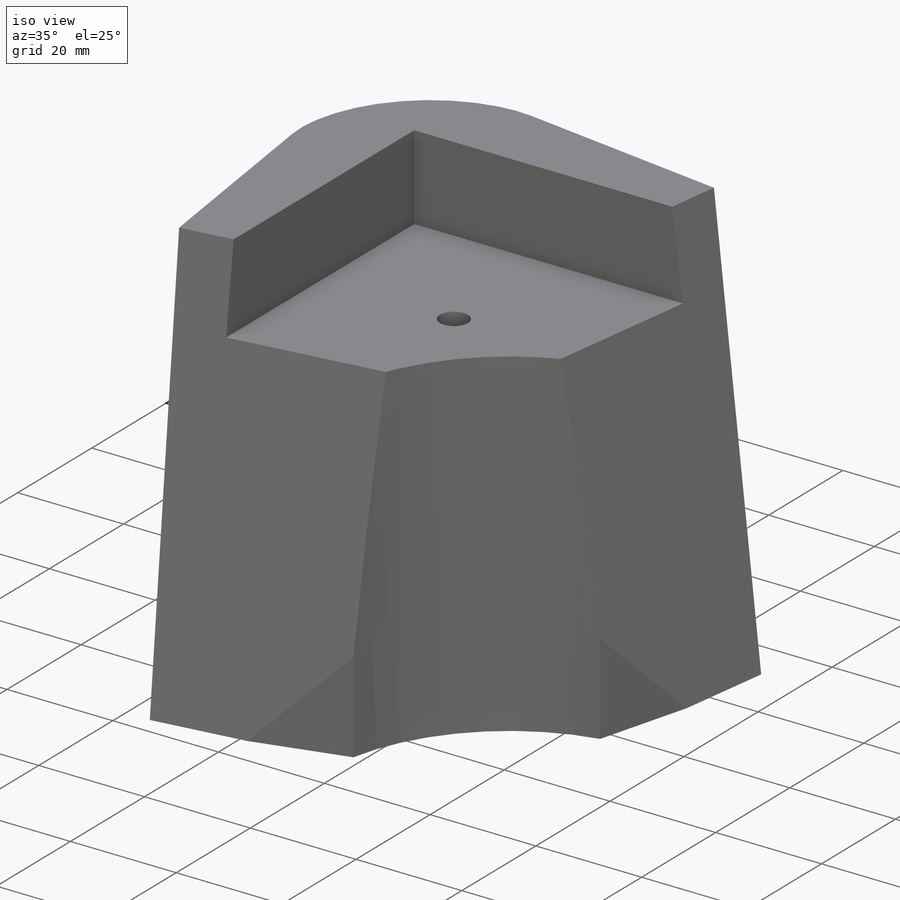
[diagram: iso view]
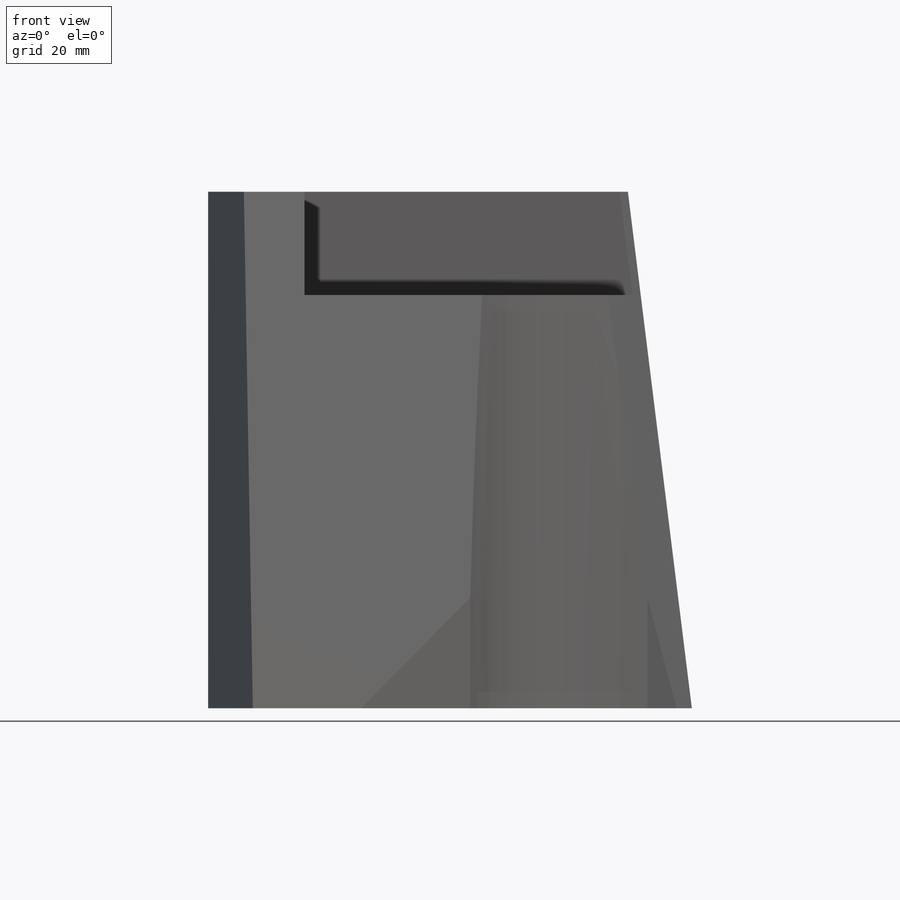
[diagram: front view]
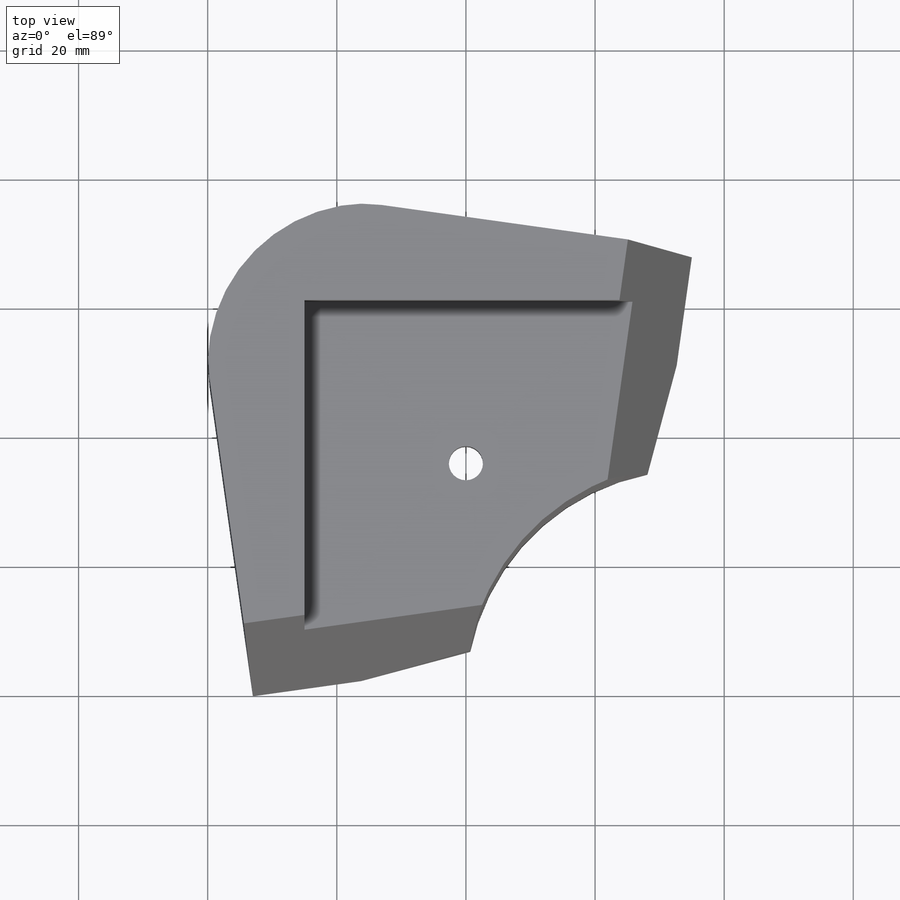
[diagram: top view]
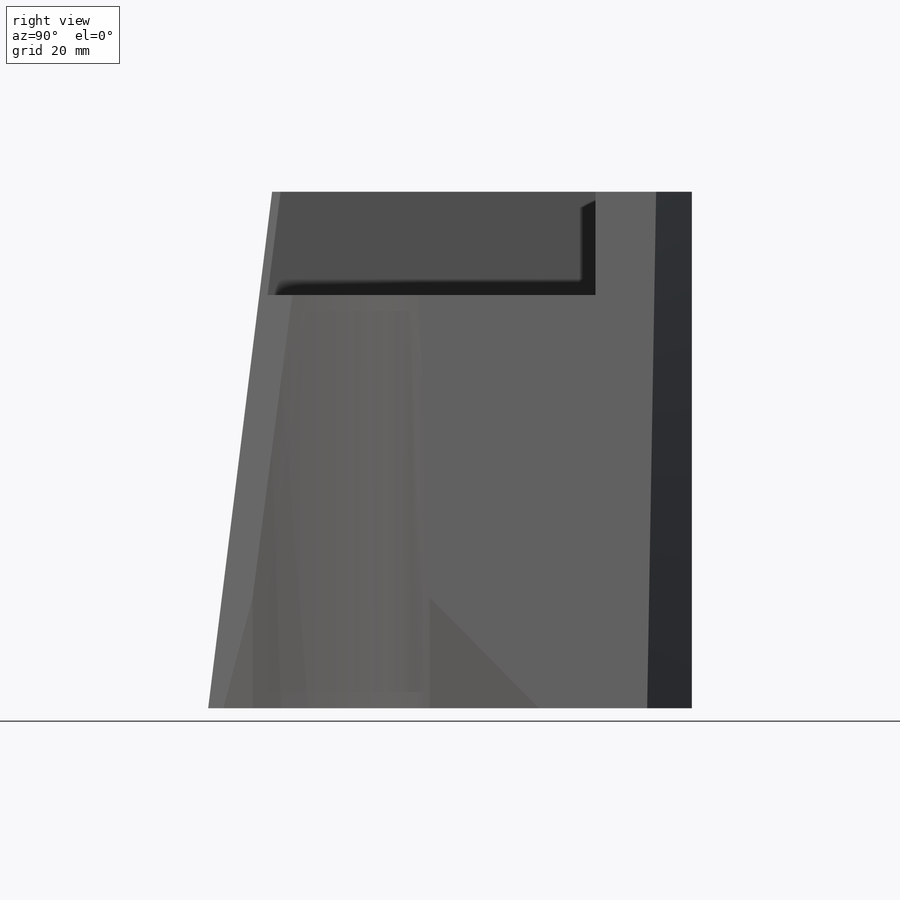
[diagram: right view]
SOLIDWORKS PART (.sldprt)
format: sldprt  version: not decoded by parser v0  size: 250,368 bytes
history: native  units: mm
features: sketch x8, cut_extrude x7, plane x3, fillet x2, material x1, extrude x1 (+9 scaffold rows collapsed)
feature tree (31):
  scaffold x9  (default folders/planes/origin — collapsed)
  material  "Material <sin especificar>"
  plane  "Alzado"
  plane  "Planta"
  plane  "Vista lateral"
  sketch  "Croquis1"  dims[D1=25.0mm D2=60.0mm D3=75.0mm]
  extrude  "Saliente-Extruir1"  Depth=80mm
  sketch  "Croquis2"  dims[D1=60.0mm D2=25.0mm]
  cut_extrude  "Cortar-Extruir1"  Depth=16mm
  sketch  "Croquis3"  dims[D2=5.3mm D1=25.0mm]
  cut_extrude  "Cortar-Extruir2"  Depth=69.2mm
  sketch  "Croquis4"  dims[D1=8.1mm]
  cut_extrude  "Cortar-Extruir3"  Depth=55mm
  sketch  "Croquis5"  dims[c1.D2=70.0mm c1.D1=~26.372465mm c2.D1=15.0deg]
  cut_extrude  "Cortar-Extruir4"  Depth=75mm
  fillet  "Redondeo5"  Radius=25mm
  sketch  "Croquis7"  dims[D1=8.0mm]
  cut_extrude  "Cortar-Extruir5"  [1 undecoded]
  fillet  "Redondeo7"  Radius=20mm
  sketch  "Croquis8"  dims[D1=10.0mm]
  sketch  "Croquis10"  dims[D1=10.0mm]
  cut_extrude  "Cortar-Extruir6"  Depth=75mm
  cut_extrude  "Cortar-Extruir7"  Depth=75mm
decode coverage: 17 of 18 modeling features carry decoded parameters
note: ~ marks probable driven/reference dimensions
note: 1 parameter value undecoded
note: suppression state not decoded; provenance and decode notes live in map.json
